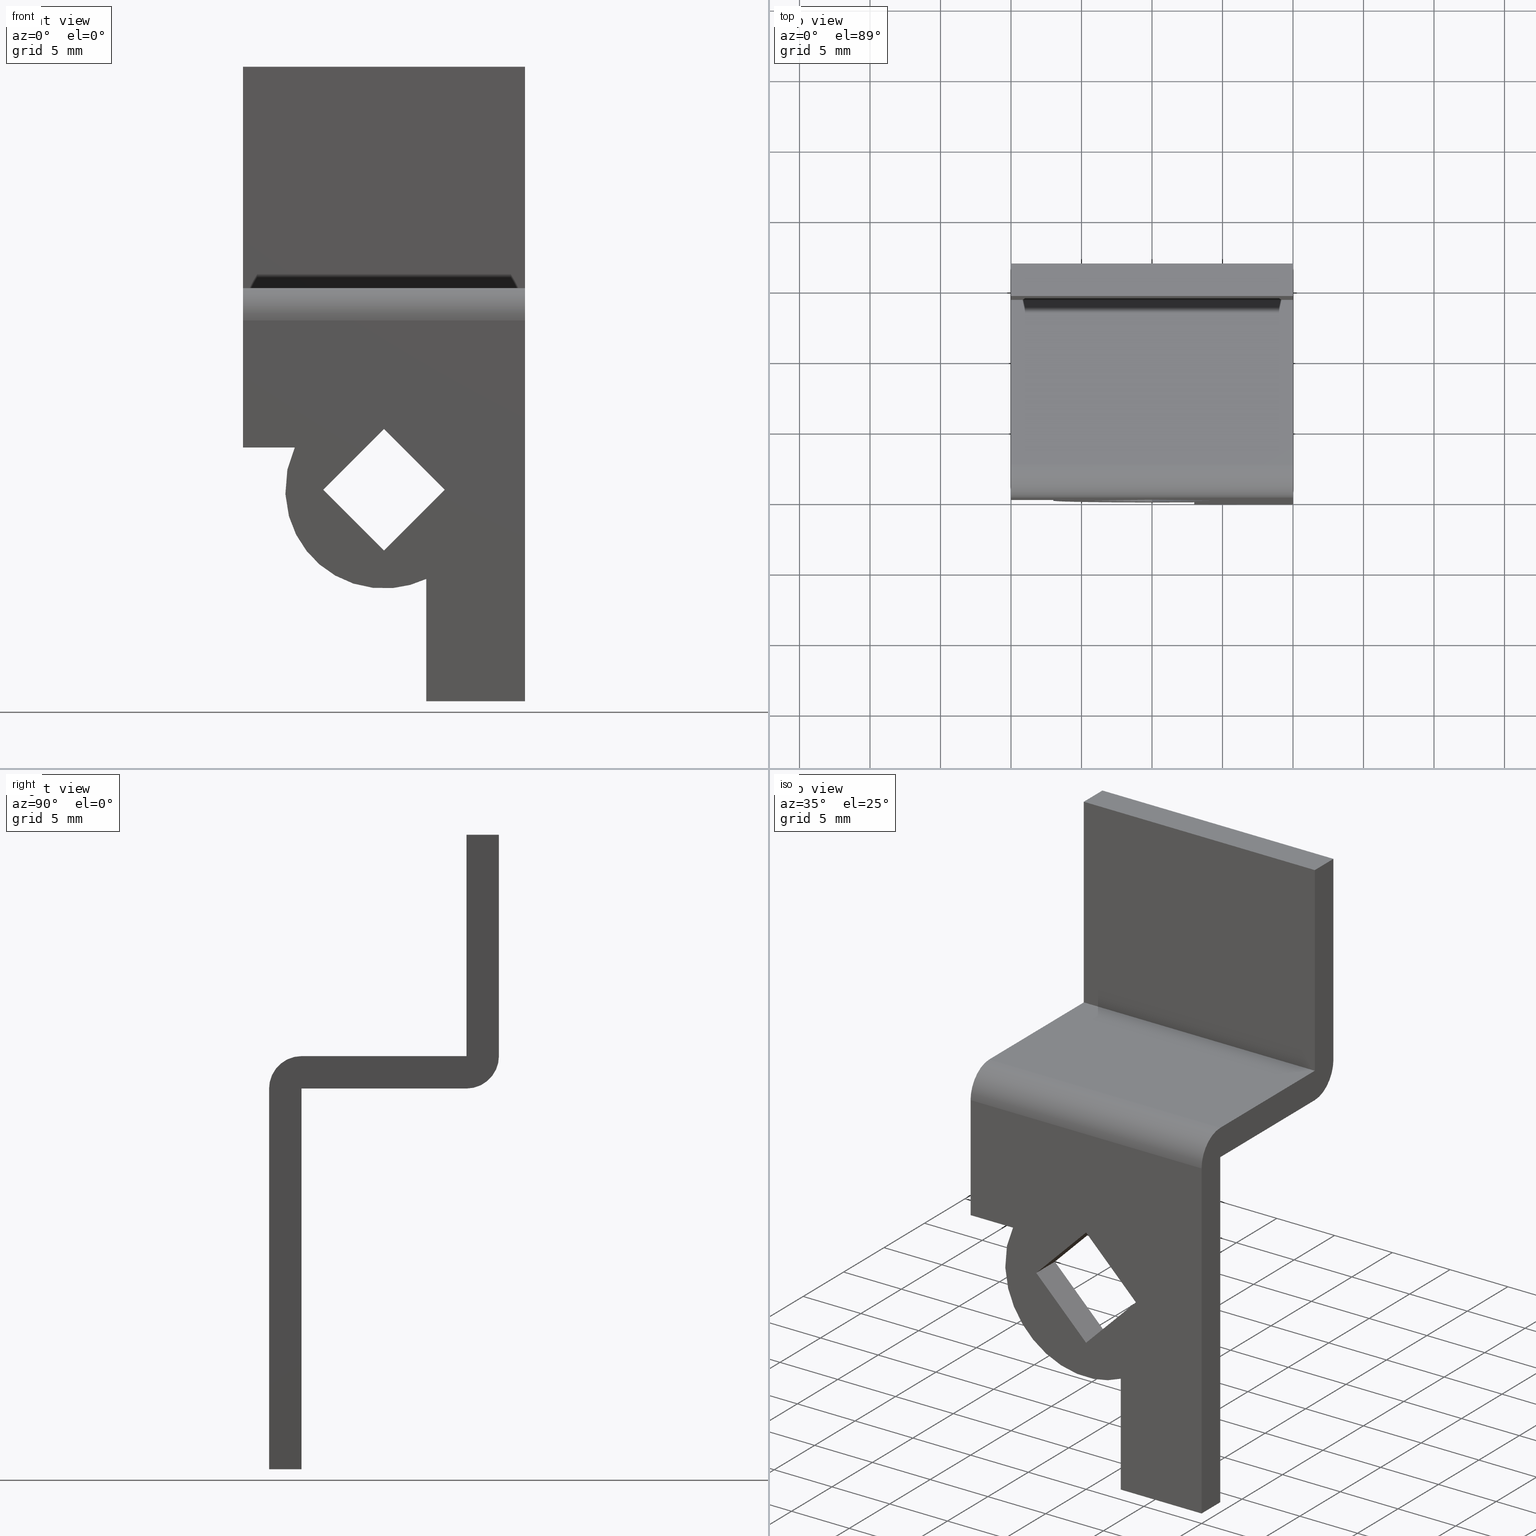
[diagram: canonical four-view strip — front | top / right | iso, engineering-drawing reading convention]
A machine part, canonical four-view strip (front | top / right | iso — engineering-drawing reading convention). The complete STEP part file that produces these views, byte-faithful:
ISO-10303-21;
HEADER;
/****************************************************************
 * Generated by software with PDE/Lib inside                    *
 * PDElib Version 4.4.1-0003, patched  Thursday August 19 11:58 *
 * International Technegroup Inc. (www.iti-oh.com)              *
 ****************************************************************/
FILE_DESCRIPTION((''),'2;1');
FILE_NAME('','2005-07-15T17:29:30',(''),(''),'','CADfix','');
FILE_SCHEMA(('AUTOMOTIVE_DESIGN'));
ENDSEC;
DATA;
#5=APPLICATION_CONTEXT('automotive design');
#6=APPLICATION_PROTOCOL_DEFINITION('Draft International Standard','automotive_design',1998,#5);
#7=PRODUCT_CONTEXT('None',#5,'mechanical');
#8=PRODUCT('cam','','None',(#7));
#9=PRODUCT_RELATED_PRODUCT_CATEGORY('part','description',(#8));
#10=PRODUCT_DEFINITION_FORMATION('None','None',#8);
#11=PRODUCT_DEFINITION_CONTEXT('part definition',#5,'design');
#12=PRODUCT_DEFINITION('None','None',#10,#11);
#18=(NAMED_UNIT(*)PLANE_ANGLE_UNIT()SI_UNIT($,.RADIAN.));
#19=DIMENSIONAL_EXPONENTS(0.0,0.0,0.0,0.0,0.0,0.0,0.0);
#20=PLANE_ANGLE_MEASURE_WITH_UNIT(PLANE_ANGLE_MEASURE(0.017453292500000),#18);
#24=(CONVERSION_BASED_UNIT('DEGREE',#20)NAMED_UNIT(#19)PLANE_ANGLE_UNIT());
#28=(NAMED_UNIT(*)SI_UNIT($,.STERADIAN.)SOLID_ANGLE_UNIT());
#32=(LENGTH_UNIT()NAMED_UNIT(*)SI_UNIT(.MILLI.,.METRE.));
#34=UNCERTAINTY_MEASURE_WITH_UNIT(LENGTH_MEASURE(0.001000000000000),#32,'DISTANCE_ACCURACY_VALUE','');
#36=(GEOMETRIC_REPRESENTATION_CONTEXT(3)GLOBAL_UNCERTAINTY_ASSIGNED_CONTEXT((#34))GLOBAL_UNIT_ASSIGNED_CONTEXT((#24,#28,#32))REPRESENTATION_CONTEXT('None','None'));
#37=AXIS2_PLACEMENT_3D('',#38,#39,#40);
#38=CARTESIAN_POINT('',(0.0,0.0,0.0));
#39=DIRECTION('',(0.0,0.0,1.0));
#40=DIRECTION('',(1.0,0.0,0.0));
#41=ADVANCED_BREP_SHAPE_REPRESENTATION('',(#37,#666),#36);
#42=PRODUCT_DEFINITION_SHAPE('','',#12);
#43=SHAPE_DEFINITION_REPRESENTATION(#42,#41);
#44=CARTESIAN_POINT('',(0.215450484949564,-0.114885145392148,-4.528799033399176));
#45=CARTESIAN_POINT('',(-4.528774639206167,-0.114885145392148,0.215460187656826));
#46=CARTESIAN_POINT('',(0.215450484949564,2.414888207083036,-4.528799033399176));
#47=CARTESIAN_POINT('',(-4.528774639206167,2.414888207083036,0.215460187656826));
#48=B_SPLINE_SURFACE_WITH_KNOTS('',1,1,((#44,#46),(#45,#47)),.UNSPECIFIED.,.F.,.F.,.U.,(2,2),(2,2),(0.0,6.709371623724935),(0.0,2.529773352475185),.UNSPECIFIED.);
#49=CARTESIAN_POINT('',(-4.313324000000001,2.300003000000000,0.000007999999909));
#50=VERTEX_POINT('',#49);
#51=CARTESIAN_POINT('',(-4.313324000000286,0.0,0.000007999999885));
#52=VERTEX_POINT('',#51);
#53=CARTESIAN_POINT('',(-4.313324000000001,2.300003000000000,0.000007999999909));
#54=CARTESIAN_POINT('',(-4.313324000000286,0.0,0.000007999999885));
#55=QUASI_UNIFORM_CURVE('',1,(#53,#54),.UNSPECIFIED.,.F.,.U.);
#56=EDGE_CURVE('',#50,#52,#55,.T.);
#57=ORIENTED_EDGE('',*,*,#56,.T.);
#58=CARTESIAN_POINT('',(0.0,0.0,-4.313347000000000));
#59=VERTEX_POINT('',#58);
#60=CARTESIAN_POINT('',(-4.313324000000286,0.0,0.000007999999885));
#61=CARTESIAN_POINT('',(0.0,0.0,-4.313347000000000));
#62=QUASI_UNIFORM_CURVE('',1,(#60,#61),.UNSPECIFIED.,.F.,.U.);
#63=EDGE_CURVE('',#52,#59,#62,.T.);
#64=ORIENTED_EDGE('',*,*,#63,.T.);
#65=CARTESIAN_POINT('',(-3.330669E-013,2.300003000000000,-4.313347000000000));
#66=VERTEX_POINT('',#65);
#67=CARTESIAN_POINT('',(-3.330669E-013,2.300003000000000,-4.313347000000000));
#68=CARTESIAN_POINT('',(0.0,0.0,-4.313347000000000));
#69=QUASI_UNIFORM_CURVE('',1,(#67,#68),.UNSPECIFIED.,.F.,.U.);
#70=EDGE_CURVE('',#66,#59,#69,.T.);
#71=ORIENTED_EDGE('',*,*,#70,.F.);
#72=CARTESIAN_POINT('',(-4.313324000000001,2.300003000000000,0.000007999999909));
#73=CARTESIAN_POINT('',(-3.330669E-013,2.300003000000000,-4.313347000000000));
#74=QUASI_UNIFORM_CURVE('',1,(#72,#73),.UNSPECIFIED.,.F.,.U.);
#75=EDGE_CURVE('',#50,#66,#74,.T.);
#76=ORIENTED_EDGE('',*,*,#75,.F.);
#77=EDGE_LOOP('',(#57,#64,#71,#76));
#78=FACE_OUTER_BOUND('',#77,.T.);
#79=ADVANCED_FACE('',(#78),#48,.F.);
#80=CARTESIAN_POINT('',(-4.528774525440114,-0.114885145392148,-0.215442875090170));
#81=CARTESIAN_POINT('',(0.215450641132314,-0.114885145392148,4.528789990782387));
#82=CARTESIAN_POINT('',(-4.528774525440114,2.414888207083036,-0.215442875090170));
#83=CARTESIAN_POINT('',(0.215450641132314,2.414888207083036,4.528789990782387));
#84=B_SPLINE_SURFACE_WITH_KNOTS('',1,1,((#80,#82),(#81,#83)),.UNSPECIFIED.,.F.,.F.,.U.,(2,2),(2,2),(0.0,6.709353017748025),(0.0,2.529773352475184),.UNSPECIFIED.);
#85=CARTESIAN_POINT('',(0.0,2.300003000000000,4.313338999999901));
#86=VERTEX_POINT('',#85);
#87=CARTESIAN_POINT('',(0.0,0.0,4.313338999999901));
#88=VERTEX_POINT('',#87);
#89=CARTESIAN_POINT('',(0.0,2.300003000000000,4.313338999999901));
#90=CARTESIAN_POINT('',(0.0,0.0,4.313338999999901));
#91=QUASI_UNIFORM_CURVE('',1,(#89,#90),.UNSPECIFIED.,.F.,.U.);
#92=EDGE_CURVE('',#86,#88,#91,.T.);
#93=ORIENTED_EDGE('',*,*,#92,.T.);
#94=CARTESIAN_POINT('',(0.0,0.0,4.313338999999901));
#95=CARTESIAN_POINT('',(-4.313324000000286,0.0,0.000007999999885));
#96=QUASI_UNIFORM_CURVE('',1,(#94,#95),.UNSPECIFIED.,.F.,.U.);
#97=EDGE_CURVE('',#88,#52,#96,.T.);
#98=ORIENTED_EDGE('',*,*,#97,.T.);
#99=ORIENTED_EDGE('',*,*,#56,.F.);
#100=CARTESIAN_POINT('',(0.0,2.300003000000000,4.313338999999901));
#101=CARTESIAN_POINT('',(-4.313324000000001,2.300003000000000,0.000007999999909));
#102=QUASI_UNIFORM_CURVE('',1,(#100,#101),.UNSPECIFIED.,.F.,.U.);
#103=EDGE_CURVE('',#86,#50,#102,.T.);
#104=ORIENTED_EDGE('',*,*,#103,.F.);
#105=EDGE_LOOP('',(#93,#98,#99,#104));
#106=FACE_OUTER_BOUND('',#105,.T.);
#107=ADVANCED_FACE('',(#106),#84,.F.);
#108=CARTESIAN_POINT('',(-0.215452145411924,-0.114885145392148,4.528790795761635));
#109=CARTESIAN_POINT('',(4.528806145411811,-0.114885145392148,-0.215459795761731));
#110=CARTESIAN_POINT('',(-0.215452145411924,2.414888207083036,4.528790795761635));
#111=CARTESIAN_POINT('',(4.528806145411811,2.414888207083036,-0.215459795761731));
#112=B_SPLINE_SURFACE_WITH_KNOTS('',1,1,((#108,#110),(#109,#111)),.UNSPECIFIED.,.F.,.F.,.U.,(2,2),(2,2),(0.0,6.709388974058633),(0.0,2.529773352475185),.UNSPECIFIED.);
#113=CARTESIAN_POINT('',(4.313353999999890,2.300003000000000,-0.000007999999994));
#114=VERTEX_POINT('',#113);
#115=CARTESIAN_POINT('',(4.313353999999890,0.0,-0.000007999999994));
#116=VERTEX_POINT('',#115);
#117=CARTESIAN_POINT('',(4.313353999999890,2.300003000000000,-0.000007999999994));
#118=CARTESIAN_POINT('',(4.313353999999890,0.0,-0.000007999999994));
#119=QUASI_UNIFORM_CURVE('',1,(#117,#118),.UNSPECIFIED.,.F.,.U.);
#120=EDGE_CURVE('',#114,#116,#119,.T.);
#121=ORIENTED_EDGE('',*,*,#120,.T.);
#122=CARTESIAN_POINT('',(4.313353999999890,0.0,-0.000007999999994));
#123=CARTESIAN_POINT('',(0.0,0.0,4.313338999999901));
#124=QUASI_UNIFORM_CURVE('',1,(#122,#123),.UNSPECIFIED.,.F.,.U.);
#125=EDGE_CURVE('',#116,#88,#124,.T.);
#126=ORIENTED_EDGE('',*,*,#125,.T.);
#127=ORIENTED_EDGE('',*,*,#92,.F.);
#128=CARTESIAN_POINT('',(4.313353999999890,2.300003000000000,-0.000007999999994));
#129=CARTESIAN_POINT('',(0.0,2.300003000000000,4.313338999999901));
#130=QUASI_UNIFORM_CURVE('',1,(#128,#129),.UNSPECIFIED.,.F.,.U.);
#131=EDGE_CURVE('',#114,#86,#130,.T.);
#132=ORIENTED_EDGE('',*,*,#131,.F.);
#133=EDGE_LOOP('',(#121,#126,#127,#132));
#134=FACE_OUTER_BOUND('',#133,.T.);
#135=ADVANCED_FACE('',(#134),#112,.F.);
#136=CARTESIAN_POINT('',(4.528806049020131,-0.114885145392148,0.215443299770187));
#137=CARTESIAN_POINT('',(-0.215451817634064,-0.114885145392148,-4.528798068384816));
#138=CARTESIAN_POINT('',(4.528806049020131,2.414888207083036,0.215443299770187));
#139=CARTESIAN_POINT('',(-0.215451817634064,2.414888207083036,-4.528798068384816));
#140=B_SPLINE_SURFACE_WITH_KNOTS('',1,1,((#136,#138),(#137,#139)),.UNSPECIFIED.,.F.,.F.,.U.,(2,2),(2,2),(0.0,6.709382152227094),(0.0,2.529773352475185),.UNSPECIFIED.);
#141=ORIENTED_EDGE('',*,*,#70,.T.);
#142=CARTESIAN_POINT('',(0.0,0.0,-4.313347000000000));
#143=CARTESIAN_POINT('',(4.313353999999890,0.0,-0.000007999999994));
#144=QUASI_UNIFORM_CURVE('',1,(#142,#143),.UNSPECIFIED.,.F.,.U.);
#145=EDGE_CURVE('',#59,#116,#144,.T.);
#146=ORIENTED_EDGE('',*,*,#145,.T.);
#147=ORIENTED_EDGE('',*,*,#120,.F.);
#148=CARTESIAN_POINT('',(-3.330669E-013,2.300003000000000,-4.313347000000000));
#149=CARTESIAN_POINT('',(4.313353999999890,2.300003000000000,-0.000007999999994));
#150=QUASI_UNIFORM_CURVE('',1,(#148,#149),.UNSPECIFIED.,.F.,.U.);
#151=EDGE_CURVE('',#66,#114,#150,.T.);
#152=ORIENTED_EDGE('',*,*,#151,.F.);
#153=EDGE_LOOP('',(#141,#146,#147,#152));
#154=FACE_OUTER_BOUND('',#153,.T.);
#155=ADVANCED_FACE('',(#154),#140,.F.);
#156=CARTESIAN_POINT('',(-10.183588470626400,-0.114885145392148,3.0));
#157=CARTESIAN_POINT('',(-6.140966430790696,-0.114885145392148,3.0));
#158=CARTESIAN_POINT('',(-10.183588470626400,2.414888207083036,3.0));
#159=CARTESIAN_POINT('',(-6.140966430790697,2.414888207083036,3.0));
#160=B_SPLINE_SURFACE_WITH_KNOTS('',1,1,((#156,#158),(#157,#159)),.UNSPECIFIED.,.F.,.F.,.U.,(2,2),(2,2),(0.0,4.042622039835701),(0.0,2.529773352475184),.UNSPECIFIED.);
#161=CARTESIAN_POINT('',(-6.324555000000090,2.300003000000000,3.0));
#162=VERTEX_POINT('',#161);
#163=CARTESIAN_POINT('',(-6.324555000000090,0.0,3.0));
#164=VERTEX_POINT('',#163);
#165=CARTESIAN_POINT('',(-6.324555000000090,2.300003000000000,3.0));
#166=CARTESIAN_POINT('',(-6.324555000000090,0.0,3.0));
#167=QUASI_UNIFORM_CURVE('',1,(#165,#166),.UNSPECIFIED.,.F.,.U.);
#168=EDGE_CURVE('',#162,#164,#167,.T.);
#169=ORIENTED_EDGE('',*,*,#168,.T.);
#170=CARTESIAN_POINT('',(-10.000000000000121,0.0,3.0));
#171=VERTEX_POINT('',#170);
#172=CARTESIAN_POINT('',(-6.324555000000090,0.0,3.0));
#173=CARTESIAN_POINT('',(-10.000000000000121,0.0,3.0));
#174=QUASI_UNIFORM_CURVE('',1,(#172,#173),.UNSPECIFIED.,.F.,.U.);
#175=EDGE_CURVE('',#164,#171,#174,.T.);
#176=ORIENTED_EDGE('',*,*,#175,.T.);
#177=CARTESIAN_POINT('',(-10.0,2.300003000000000,3.0));
#178=VERTEX_POINT('',#177);
#179=CARTESIAN_POINT('',(-10.0,2.300003000000000,3.0));
#180=CARTESIAN_POINT('',(-10.000000000000121,0.0,3.0));
#181=QUASI_UNIFORM_CURVE('',1,(#179,#180),.UNSPECIFIED.,.F.,.U.);
#182=EDGE_CURVE('',#178,#171,#181,.T.);
#183=ORIENTED_EDGE('',*,*,#182,.F.);
#184=CARTESIAN_POINT('',(-6.324555000000090,2.300003000000000,3.0));
#185=CARTESIAN_POINT('',(-10.0,2.300003000000000,3.0));
#186=QUASI_UNIFORM_CURVE('',1,(#184,#185),.UNSPECIFIED.,.F.,.U.);
#187=EDGE_CURVE('',#162,#178,#186,.T.);
#188=ORIENTED_EDGE('',*,*,#187,.F.);
#189=EDGE_LOOP('',(#169,#176,#183,#188));
#190=FACE_OUTER_BOUND('',#189,.T.);
#191=ADVANCED_FACE('',(#190),#160,.F.);
#192=CARTESIAN_POINT('',(3.0,-0.114885145392148,-5.891223970153591));
#193=CARTESIAN_POINT('',(3.0,-0.114885145392148,-15.433338340104349));
#194=CARTESIAN_POINT('',(3.0,2.414888207083036,-5.891223970153592));
#195=CARTESIAN_POINT('',(3.0,2.414888207083036,-15.433338340104349));
#196=B_SPLINE_SURFACE_WITH_KNOTS('',1,1,((#192,#194),(#193,#195)),.UNSPECIFIED.,.F.,.F.,.U.,(2,2),(2,2),(0.0,9.542114369950756),(0.0,2.529773352475184),.UNSPECIFIED.);
#197=CARTESIAN_POINT('',(3.0,2.300003000000000,-15.0));
#198=VERTEX_POINT('',#197);
#199=CARTESIAN_POINT('',(3.0,0.0,-15.0));
#200=VERTEX_POINT('',#199);
#201=CARTESIAN_POINT('',(3.0,2.300003000000000,-15.0));
#202=CARTESIAN_POINT('',(3.0,0.0,-15.0));
#203=QUASI_UNIFORM_CURVE('',1,(#201,#202),.UNSPECIFIED.,.F.,.U.);
#204=EDGE_CURVE('',#198,#200,#203,.T.);
#205=ORIENTED_EDGE('',*,*,#204,.T.);
#206=CARTESIAN_POINT('',(3.0,0.0,-6.324562000000100));
#207=VERTEX_POINT('',#206);
#208=CARTESIAN_POINT('',(3.0,0.0,-15.0));
#209=CARTESIAN_POINT('',(3.0,0.0,-6.324562000000100));
#210=QUASI_UNIFORM_CURVE('',1,(#208,#209),.UNSPECIFIED.,.F.,.U.);
#211=EDGE_CURVE('',#200,#207,#210,.T.);
#212=ORIENTED_EDGE('',*,*,#211,.T.);
#213=CARTESIAN_POINT('',(3.0,2.300003000000000,-6.324562000000100));
#214=VERTEX_POINT('',#213);
#215=CARTESIAN_POINT('',(3.0,2.300003000000000,-6.324562000000100));
#216=CARTESIAN_POINT('',(3.0,0.0,-6.324562000000100));
#217=QUASI_UNIFORM_CURVE('',1,(#215,#216),.UNSPECIFIED.,.F.,.U.);
#218=EDGE_CURVE('',#214,#207,#217,.T.);
#219=ORIENTED_EDGE('',*,*,#218,.F.);
#220=CARTESIAN_POINT('',(3.0,2.300003000000000,-15.0));
#221=CARTESIAN_POINT('',(3.0,2.300003000000000,-6.324562000000100));
#222=QUASI_UNIFORM_CURVE('',1,(#220,#221),.UNSPECIFIED.,.F.,.U.);
#223=EDGE_CURVE('',#198,#214,#222,.T.);
#224=ORIENTED_EDGE('',*,*,#223,.F.);
#225=EDGE_LOOP('',(#205,#212,#219,#224));
#226=FACE_OUTER_BOUND('',#225,.T.);
#227=ADVANCED_FACE('',(#226),#196,.F.);
#228=CARTESIAN_POINT('',(3.191322680030121,2.357503075000001,-6.230205418116269));
#229=CARTESIAN_POINT('',(3.191322680030121,-0.058937576875000,-6.230205418116269));
#230=CARTESIAN_POINT('',(-1.460992365745341,2.357503075000001,-8.613279092871229));
#231=CARTESIAN_POINT('',(-1.460992365745341,-0.058937576875000,-8.613279092871229));
#232=CARTESIAN_POINT('',(-5.067259296142423,2.357503075000001,-4.829377105347867));
#233=CARTESIAN_POINT('',(-5.067259296142423,-0.058937576875000,-4.829377105347867));
#234=CARTESIAN_POINT('',(-8.673526226539504,2.357503075000001,-1.045475117824505));
#235=CARTESIAN_POINT('',(-8.673526226539504,-0.058937576875000,-1.045475117824505));
#236=CARTESIAN_POINT('',(-6.069681471426208,2.357503075000001,3.486971011555061));
#237=CARTESIAN_POINT('',(-6.069681471426208,-0.058937576875000,3.486971011555061));
#245=(BOUNDED_SURFACE()B_SPLINE_SURFACE(1,2,((#228,#230,#232,#234,#236),(#229,#231,#233,#235,#237)),.UNSPECIFIED.,.F.,.F.,.U.)B_SPLINE_SURFACE_WITH_KNOTS((2,2),(3,2,3),(0.0,2.416440651875001),(0.0,9.300792979835226,18.601585959670452),.UNSPECIFIED.)GEOMETRIC_REPRESENTATION_ITEM()RATIONAL_B_SPLINE_SURFACE(((1.0,0.801253812691061,1.0,0.801253812691061,1.0),(1.0,0.801253812691061,1.0,0.801253812691061,1.0)))REPRESENTATION_ITEM('')SURFACE());
#246=CARTESIAN_POINT('',(-6.324555000000090,2.300003000000000,3.0));
#247=CARTESIAN_POINT('',(-8.439917307903180,2.300003000000000,-1.459576373039803));
#248=CARTESIAN_POINT('',(-4.949747104974507,2.300003000000000,-4.949749196060423));
#249=CARTESIAN_POINT('',(-1.459576902045833,2.300003000000000,-8.439922019081042));
#250=CARTESIAN_POINT('',(3.0,2.300003000000000,-6.324562000000100));
#258=(BOUNDED_CURVE()B_SPLINE_CURVE(2,(#246,#247,#248,#249,#250),.UNSPECIFIED.,.F.,.U.)B_SPLINE_CURVE_WITH_KNOTS((3,2,3),(0.0,0.500000000000000,1.0),.UNSPECIFIED.)CURVE()GEOMETRIC_REPRESENTATION_ITEM()RATIONAL_B_SPLINE_CURVE((1.0,0.817260969642256,1.0,0.817260969642256,1.0))REPRESENTATION_ITEM(''));
#259=EDGE_CURVE('',#162,#214,#258,.T.);
#260=ORIENTED_EDGE('',*,*,#259,.T.);
#261=ORIENTED_EDGE('',*,*,#218,.T.);
#262=CARTESIAN_POINT('',(-6.324555000000090,0.0,3.0));
#263=CARTESIAN_POINT('',(-8.439917307903180,0.0,-1.459576373039803));
#264=CARTESIAN_POINT('',(-4.949747104974504,0.0,-4.949749196060422));
#265=CARTESIAN_POINT('',(-1.459576902045831,0.0,-8.439922019081038));
#266=CARTESIAN_POINT('',(3.0,0.0,-6.324562000000100));
#274=(BOUNDED_CURVE()B_SPLINE_CURVE(2,(#262,#263,#264,#265,#266),.UNSPECIFIED.,.F.,.U.)B_SPLINE_CURVE_WITH_KNOTS((3,2,3),(0.0,0.500000000000000,1.0),.UNSPECIFIED.)CURVE()GEOMETRIC_REPRESENTATION_ITEM()RATIONAL_B_SPLINE_CURVE((1.0,0.817260969642256,1.0,0.817260969642256,1.0))REPRESENTATION_ITEM(''));
#275=EDGE_CURVE('',#164,#207,#274,.T.);
#276=ORIENTED_EDGE('',*,*,#275,.F.);
#277=ORIENTED_EDGE('',*,*,#168,.F.);
#278=EDGE_LOOP('',(#260,#261,#276,#277));
#279=FACE_OUTER_BOUND('',#278,.T.);
#280=ADVANCED_FACE('',(#279),#245,.T.);
#281=CARTESIAN_POINT('',(-10.0,-0.814185118257431,31.348649947668761));
#282=CARTESIAN_POINT('',(-10.0,17.114188555457581,31.348649947668761));
#283=CARTESIAN_POINT('',(-10.0,-0.814185118257431,1.651349328134806));
#284=CARTESIAN_POINT('',(-10.0,17.114188555457581,1.651349328134806));
#285=B_SPLINE_SURFACE_WITH_KNOTS('',1,1,((#281,#283),(#282,#284)),.UNSPECIFIED.,.F.,.F.,.U.,(2,2),(2,2),(0.0,17.928373673715011),(0.0,29.697300619533959),.UNSPECIFIED.);
#286=CARTESIAN_POINT('',(-10.000000000000121,2.300003000000000,12.0));
#287=VERTEX_POINT('',#286);
#288=CARTESIAN_POINT('',(-10.0,2.300003000000000,3.0));
#289=CARTESIAN_POINT('',(-10.000000000000121,2.300003000000000,12.0));
#290=QUASI_UNIFORM_CURVE('',1,(#288,#289),.UNSPECIFIED.,.F.,.U.);
#291=EDGE_CURVE('',#178,#287,#290,.T.);
#292=ORIENTED_EDGE('',*,*,#291,.F.);
#293=ORIENTED_EDGE('',*,*,#182,.T.);
#294=CARTESIAN_POINT('',(-10.000000000000121,0.000003000000015,11.999999799287140));
#295=VERTEX_POINT('',#294);
#296=CARTESIAN_POINT('',(-10.000000000000121,0.000003000000015,11.999999799287140));
#297=CARTESIAN_POINT('',(-10.000000000000121,0.0,3.0));
#298=QUASI_UNIFORM_CURVE('',1,(#296,#297),.UNSPECIFIED.,.F.,.U.);
#299=EDGE_CURVE('',#295,#171,#298,.T.);
#300=ORIENTED_EDGE('',*,*,#299,.F.);
#301=CARTESIAN_POINT('',(-10.000000000000121,2.300003000000000,14.300002999999901));
#302=VERTEX_POINT('',#301);
#303=CARTESIAN_POINT('',(-10.000000000000121,2.300003000000000,14.300002999999901));
#304=CARTESIAN_POINT('',(-10.000000000000121,1.347311747754447,14.300002378679592));
#305=CARTESIAN_POINT('',(-10.000000000000121,0.673657332308234,13.626347025766290));
#306=CARTESIAN_POINT('',(-10.000000000000121,0.000002916862020,12.952691672853000));
#307=CARTESIAN_POINT('',(-10.000000000000121,0.000003000000015,11.999999799287140));
#315=(BOUNDED_CURVE()B_SPLINE_CURVE(2,(#303,#304,#305,#306,#307),.UNSPECIFIED.,.F.,.U.)B_SPLINE_CURVE_WITH_KNOTS((3,2,3),(0.0,0.500000000000000,1.0),.UNSPECIFIED.)CURVE()GEOMETRIC_REPRESENTATION_ITEM()RATIONAL_B_SPLINE_CURVE((1.0,0.923879524162429,1.0,0.923879524162429,1.0))REPRESENTATION_ITEM(''));
#316=EDGE_CURVE('',#302,#295,#315,.T.);
#317=ORIENTED_EDGE('',*,*,#316,.F.);
#318=CARTESIAN_POINT('',(-10.000000000000121,14.0,14.300002999999901));
#319=VERTEX_POINT('',#318);
#320=CARTESIAN_POINT('',(-10.000000000000121,14.0,14.300002999999901));
#321=CARTESIAN_POINT('',(-10.000000000000121,2.300003000000000,14.300002999999901));
#322=QUASI_UNIFORM_CURVE('',1,(#320,#321),.UNSPECIFIED.,.F.,.U.);
#323=EDGE_CURVE('',#319,#302,#322,.T.);
#324=ORIENTED_EDGE('',*,*,#323,.F.);
#325=CARTESIAN_POINT('',(-10.000000000000121,14.0,30.0));
#326=VERTEX_POINT('',#325);
#327=CARTESIAN_POINT('',(-10.000000000000121,14.0,30.0));
#328=CARTESIAN_POINT('',(-10.000000000000121,14.0,14.300002999999901));
#329=QUASI_UNIFORM_CURVE('',1,(#327,#328),.UNSPECIFIED.,.F.,.U.);
#330=EDGE_CURVE('',#326,#319,#329,.T.);
#331=ORIENTED_EDGE('',*,*,#330,.F.);
#332=CARTESIAN_POINT('',(-10.000000000000121,16.300003000000000,30.0));
#333=VERTEX_POINT('',#332);
#334=CARTESIAN_POINT('',(-10.000000000000121,16.300003000000000,30.0));
#335=CARTESIAN_POINT('',(-10.000000000000121,14.0,30.0));
#336=QUASI_UNIFORM_CURVE('',1,(#334,#335),.UNSPECIFIED.,.F.,.U.);
#337=EDGE_CURVE('',#333,#326,#336,.T.);
#338=ORIENTED_EDGE('',*,*,#337,.F.);
#339=CARTESIAN_POINT('',(-10.000000000000121,16.300000000000001,14.300003200712760));
#340=VERTEX_POINT('',#339);
#341=CARTESIAN_POINT('',(-10.000000000000121,16.300000000000001,14.300003200712760));
#342=CARTESIAN_POINT('',(-10.000000000000121,16.300003000000000,30.0));
#343=QUASI_UNIFORM_CURVE('',1,(#341,#342),.UNSPECIFIED.,.F.,.U.);
#344=EDGE_CURVE('',#340,#333,#343,.T.);
#345=ORIENTED_EDGE('',*,*,#344,.F.);
#346=CARTESIAN_POINT('',(-10.000000000000121,14.0,12.0));
#347=VERTEX_POINT('',#346);
#348=CARTESIAN_POINT('',(-10.000000000000121,14.0,12.0));
#349=CARTESIAN_POINT('',(-10.000000000000121,14.952691252245561,12.000000621320304));
#350=CARTESIAN_POINT('',(-10.000000000000121,15.626345667691769,12.673655974233601));
#351=CARTESIAN_POINT('',(-10.000000000000121,16.300000083137995,13.347311327146897));
#352=CARTESIAN_POINT('',(-10.000000000000121,16.300000000000001,14.300003200712760));
#360=(BOUNDED_CURVE()B_SPLINE_CURVE(2,(#348,#349,#350,#351,#352),.UNSPECIFIED.,.F.,.U.)B_SPLINE_CURVE_WITH_KNOTS((3,2,3),(0.0,0.500000000000000,1.0),.UNSPECIFIED.)CURVE()GEOMETRIC_REPRESENTATION_ITEM()RATIONAL_B_SPLINE_CURVE((1.0,0.923879524162429,1.0,0.923879524162429,1.0))REPRESENTATION_ITEM(''));
#361=EDGE_CURVE('',#347,#340,#360,.T.);
#362=ORIENTED_EDGE('',*,*,#361,.F.);
#363=CARTESIAN_POINT('',(-10.000000000000121,2.300003000000000,12.0));
#364=CARTESIAN_POINT('',(-10.000000000000121,14.0,12.0));
#365=QUASI_UNIFORM_CURVE('',1,(#363,#364),.UNSPECIFIED.,.F.,.U.);
#366=EDGE_CURVE('',#287,#347,#365,.T.);
#367=ORIENTED_EDGE('',*,*,#366,.F.);
#368=EDGE_LOOP('',(#292,#293,#300,#317,#324,#331,#338,#345,#362,#367));
#369=FACE_OUTER_BOUND('',#368,.T.);
#370=ADVANCED_FACE('',(#369),#285,.T.);
#371=CARTESIAN_POINT('',(10.0,-0.814185118257431,32.247749912781273));
#372=CARTESIAN_POINT('',(10.0,17.114188555457581,32.247749912781273));
#373=CARTESIAN_POINT('',(10.0,-0.814185118257431,-17.247751119775319));
#374=CARTESIAN_POINT('',(10.0,17.114188555457581,-17.247751119775319));
#375=B_SPLINE_SURFACE_WITH_KNOTS('',1,1,((#371,#373),(#372,#374)),.UNSPECIFIED.,.F.,.F.,.U.,(2,2),(2,2),(0.0,17.928373673715011),(0.0,49.495501032556589),.UNSPECIFIED.);
#376=CARTESIAN_POINT('',(10.0,16.300003000000000,30.0));
#377=VERTEX_POINT('',#376);
#378=CARTESIAN_POINT('',(10.0,14.0,30.0));
#379=VERTEX_POINT('',#378);
#380=CARTESIAN_POINT('',(10.0,16.300003000000000,30.0));
#381=CARTESIAN_POINT('',(10.0,14.0,30.0));
#382=QUASI_UNIFORM_CURVE('',1,(#380,#381),.UNSPECIFIED.,.F.,.U.);
#383=EDGE_CURVE('',#377,#379,#382,.T.);
#384=ORIENTED_EDGE('',*,*,#383,.T.);
#385=CARTESIAN_POINT('',(10.0,14.0,14.300002999999901));
#386=VERTEX_POINT('',#385);
#387=CARTESIAN_POINT('',(10.0,14.0,30.0));
#388=CARTESIAN_POINT('',(10.0,14.0,14.300002999999901));
#389=QUASI_UNIFORM_CURVE('',1,(#387,#388),.UNSPECIFIED.,.F.,.U.);
#390=EDGE_CURVE('',#379,#386,#389,.T.);
#391=ORIENTED_EDGE('',*,*,#390,.T.);
#392=CARTESIAN_POINT('',(10.0,2.300003000000000,14.300002999999901));
#393=VERTEX_POINT('',#392);
#394=CARTESIAN_POINT('',(10.0,14.0,14.300002999999901));
#395=CARTESIAN_POINT('',(10.0,2.300003000000000,14.300002999999901));
#396=QUASI_UNIFORM_CURVE('',1,(#394,#395),.UNSPECIFIED.,.F.,.U.);
#397=EDGE_CURVE('',#386,#393,#396,.T.);
#398=ORIENTED_EDGE('',*,*,#397,.T.);
#399=CARTESIAN_POINT('',(10.0,0.000003000000015,11.999999799287140));
#400=VERTEX_POINT('',#399);
#401=CARTESIAN_POINT('',(10.0,2.300003000000000,14.300002999999901));
#402=CARTESIAN_POINT('',(10.0,1.347311747754447,14.300002378679592));
#403=CARTESIAN_POINT('',(10.0,0.673657332308234,13.626347025766290));
#404=CARTESIAN_POINT('',(10.0,0.000002916862020,12.952691672853000));
#405=CARTESIAN_POINT('',(10.0,0.000003000000015,11.999999799287140));
#413=(BOUNDED_CURVE()B_SPLINE_CURVE(2,(#401,#402,#403,#404,#405),.UNSPECIFIED.,.F.,.U.)B_SPLINE_CURVE_WITH_KNOTS((3,2,3),(0.0,0.500000000000000,1.0),.UNSPECIFIED.)CURVE()GEOMETRIC_REPRESENTATION_ITEM()RATIONAL_B_SPLINE_CURVE((1.0,0.923879524162429,1.0,0.923879524162429,1.0))REPRESENTATION_ITEM(''));
#414=EDGE_CURVE('',#393,#400,#413,.T.);
#415=ORIENTED_EDGE('',*,*,#414,.T.);
#416=CARTESIAN_POINT('',(10.0,0.0,-15.0));
#417=VERTEX_POINT('',#416);
#418=CARTESIAN_POINT('',(10.0,0.000003000000015,11.999999799287140));
#419=CARTESIAN_POINT('',(10.0,0.0,-15.0));
#420=QUASI_UNIFORM_CURVE('',1,(#418,#419),.UNSPECIFIED.,.F.,.U.);
#421=EDGE_CURVE('',#400,#417,#420,.T.);
#422=ORIENTED_EDGE('',*,*,#421,.T.);
#423=CARTESIAN_POINT('',(10.0,2.300003000000000,-15.0));
#424=VERTEX_POINT('',#423);
#425=CARTESIAN_POINT('',(10.0,0.0,-15.0));
#426=CARTESIAN_POINT('',(10.0,2.300003000000000,-15.0));
#427=QUASI_UNIFORM_CURVE('',1,(#425,#426),.UNSPECIFIED.,.F.,.U.);
#428=EDGE_CURVE('',#417,#424,#427,.T.);
#429=ORIENTED_EDGE('',*,*,#428,.T.);
#430=CARTESIAN_POINT('',(10.0,2.300003000000000,12.0));
#431=VERTEX_POINT('',#430);
#432=CARTESIAN_POINT('',(10.0,2.300003000000000,-15.0));
#433=CARTESIAN_POINT('',(10.0,2.300003000000000,12.0));
#434=QUASI_UNIFORM_CURVE('',1,(#432,#433),.UNSPECIFIED.,.F.,.U.);
#435=EDGE_CURVE('',#424,#431,#434,.T.);
#436=ORIENTED_EDGE('',*,*,#435,.T.);
#437=CARTESIAN_POINT('',(10.0,14.0,12.0));
#438=VERTEX_POINT('',#437);
#439=CARTESIAN_POINT('',(10.0,2.300003000000000,12.0));
#440=CARTESIAN_POINT('',(10.0,14.0,12.0));
#441=QUASI_UNIFORM_CURVE('',1,(#439,#440),.UNSPECIFIED.,.F.,.U.);
#442=EDGE_CURVE('',#431,#438,#441,.T.);
#443=ORIENTED_EDGE('',*,*,#442,.T.);
#444=CARTESIAN_POINT('',(10.0,16.300000000000001,14.300003200712760));
#445=VERTEX_POINT('',#444);
#446=CARTESIAN_POINT('',(10.0,14.0,12.0));
#447=CARTESIAN_POINT('',(10.0,14.952691252245561,12.000000621320304));
#448=CARTESIAN_POINT('',(10.0,15.626345667691769,12.673655974233601));
#449=CARTESIAN_POINT('',(10.0,16.300000083137995,13.347311327146897));
#450=CARTESIAN_POINT('',(10.0,16.300000000000001,14.300003200712760));
#458=(BOUNDED_CURVE()B_SPLINE_CURVE(2,(#446,#447,#448,#449,#450),.UNSPECIFIED.,.F.,.U.)B_SPLINE_CURVE_WITH_KNOTS((3,2,3),(0.0,0.500000000000000,1.0),.UNSPECIFIED.)CURVE()GEOMETRIC_REPRESENTATION_ITEM()RATIONAL_B_SPLINE_CURVE((1.0,0.923879524162429,1.0,0.923879524162429,1.0))REPRESENTATION_ITEM(''));
#459=EDGE_CURVE('',#438,#445,#458,.T.);
#460=ORIENTED_EDGE('',*,*,#459,.T.);
#461=CARTESIAN_POINT('',(10.0,16.300000000000001,14.300003200712760));
#462=CARTESIAN_POINT('',(10.0,16.300003000000000,30.0));
#463=QUASI_UNIFORM_CURVE('',1,(#461,#462),.UNSPECIFIED.,.F.,.U.);
#464=EDGE_CURVE('',#445,#377,#463,.T.);
#465=ORIENTED_EDGE('',*,*,#464,.T.);
#466=EDGE_LOOP('',(#384,#391,#398,#415,#422,#429,#436,#443,#460,#465));
#467=FACE_OUTER_BOUND('',#466,.T.);
#468=ADVANCED_FACE('',(#467),#375,.F.);
#469=CARTESIAN_POINT('',(-10.998999961236249,16.300003000000000,30.784214809694760));
#470=CARTESIAN_POINT('',(-10.998999961236249,16.300003000000000,13.515787969911271));
#471=CARTESIAN_POINT('',(10.999000497677930,16.300003000000000,30.784214809694760));
#472=CARTESIAN_POINT('',(10.999000497677930,16.300003000000000,13.515787969911271));
#473=B_SPLINE_SURFACE_WITH_KNOTS('',1,1,((#469,#471),(#470,#472)),.UNSPECIFIED.,.F.,.F.,.U.,(2,2),(2,2),(0.0,17.268426839783491),(0.0,21.998000458914170),.UNSPECIFIED.);
#474=ORIENTED_EDGE('',*,*,#344,.T.);
#475=CARTESIAN_POINT('',(10.0,16.300003000000000,30.0));
#476=CARTESIAN_POINT('',(-10.000000000000121,16.300003000000000,30.0));
#477=QUASI_UNIFORM_CURVE('',1,(#475,#476),.UNSPECIFIED.,.F.,.U.);
#478=EDGE_CURVE('',#377,#333,#477,.T.);
#479=ORIENTED_EDGE('',*,*,#478,.F.);
#480=ORIENTED_EDGE('',*,*,#464,.F.);
#481=CARTESIAN_POINT('',(10.0,16.300000000000001,14.300003200712760));
#482=CARTESIAN_POINT('',(-10.000000000000121,16.300000000000001,14.300003200712760));
#483=QUASI_UNIFORM_CURVE('',1,(#481,#482),.UNSPECIFIED.,.F.,.U.);
#484=EDGE_CURVE('',#445,#340,#483,.T.);
#485=ORIENTED_EDGE('',*,*,#484,.T.);
#486=EDGE_LOOP('',(#474,#479,#480,#485));
#487=FACE_OUTER_BOUND('',#486,.T.);
#488=ADVANCED_FACE('',(#487),#473,.F.);
#489=CARTESIAN_POINT('',(10.500000000000011,13.939793018891891,12.000791152556120));
#490=CARTESIAN_POINT('',(-10.512500000000120,13.939793018891891,12.000791152556120));
#491=CARTESIAN_POINT('',(10.500000000000005,16.448942453766470,11.935086762249121));
#492=CARTESIAN_POINT('',(-10.512500000000122,16.448942453766470,11.935086762249121));
#493=CARTESIAN_POINT('',(10.500000000000011,16.295710036370298,14.440414640930070));
#494=CARTESIAN_POINT('',(-10.512500000000120,16.295710036370298,14.440414640930070));
#502=(BOUNDED_SURFACE()B_SPLINE_SURFACE(1,2,((#489,#491,#493),(#490,#492,#494)),.UNSPECIFIED.,.F.,.F.,.U.)B_SPLINE_SURFACE_WITH_KNOTS((2,2),(3,3),(0.0,21.012500000000131),(0.0,4.048096884204867),.UNSPECIFIED.)GEOMETRIC_REPRESENTATION_ITEM()RATIONAL_B_SPLINE_SURFACE(((1.0,0.675590207615660,1.0),(1.0,0.675590207615660,1.0)))REPRESENTATION_ITEM('')SURFACE());
#503=ORIENTED_EDGE('',*,*,#361,.T.);
#504=ORIENTED_EDGE('',*,*,#484,.F.);
#505=ORIENTED_EDGE('',*,*,#459,.F.);
#506=CARTESIAN_POINT('',(10.0,14.0,12.0));
#507=CARTESIAN_POINT('',(-10.000000000000121,14.0,12.0));
#508=QUASI_UNIFORM_CURVE('',1,(#506,#507),.UNSPECIFIED.,.F.,.U.);
#509=EDGE_CURVE('',#438,#347,#508,.T.);
#510=ORIENTED_EDGE('',*,*,#509,.T.);
#511=EDGE_LOOP('',(#503,#504,#505,#510));
#512=FACE_OUTER_BOUND('',#511,.T.);
#513=ADVANCED_FACE('',(#512),#502,.T.);
#514=CARTESIAN_POINT('',(-10.998999961236249,1.715588172526865,12.0));
#515=CARTESIAN_POINT('',(10.999000497677930,1.715588172526865,12.0));
#516=CARTESIAN_POINT('',(-10.998999961236249,14.584415141291510,12.0));
#517=CARTESIAN_POINT('',(10.999000497677930,14.584415141291510,12.0));
#518=B_SPLINE_SURFACE_WITH_KNOTS('',1,1,((#514,#516),(#515,#517)),.UNSPECIFIED.,.F.,.F.,.U.,(2,2),(2,2),(0.0,21.998000458914181),(0.0,12.868826968764649),.UNSPECIFIED.);
#519=ORIENTED_EDGE('',*,*,#366,.T.);
#520=ORIENTED_EDGE('',*,*,#509,.F.);
#521=ORIENTED_EDGE('',*,*,#442,.F.);
#522=CARTESIAN_POINT('',(10.0,2.300003000000000,12.0));
#523=CARTESIAN_POINT('',(-10.000000000000121,2.300003000000000,12.0));
#524=QUASI_UNIFORM_CURVE('',1,(#522,#523),.UNSPECIFIED.,.F.,.U.);
#525=EDGE_CURVE('',#431,#287,#524,.T.);
#526=ORIENTED_EDGE('',*,*,#525,.T.);
#527=EDGE_LOOP('',(#519,#520,#521,#526));
#528=FACE_OUTER_BOUND('',#527,.T.);
#529=ADVANCED_FACE('',(#528),#518,.F.);
#530=CARTESIAN_POINT('',(-10.998999961236249,2.300003000000000,13.348649947668759));
#531=CARTESIAN_POINT('',(-10.998999961236249,2.300003000000000,-16.348650671865190));
#532=CARTESIAN_POINT('',(10.999000497677930,2.300003000000000,13.348649947668759));
#533=CARTESIAN_POINT('',(10.999000497677930,2.300003000000000,-16.348650671865190));
#534=B_SPLINE_SURFACE_WITH_KNOTS('',1,1,((#530,#532),(#531,#533)),.UNSPECIFIED.,.F.,.F.,.U.,(2,2),(2,2),(0.0,29.697300619533959),(0.0,21.998000458914170),.UNSPECIFIED.);
#535=CARTESIAN_POINT('',(10.0,2.300003000000000,-15.0));
#536=CARTESIAN_POINT('',(3.0,2.300003000000000,-15.0));
#537=QUASI_UNIFORM_CURVE('',1,(#535,#536),.UNSPECIFIED.,.F.,.U.);
#538=EDGE_CURVE('',#424,#198,#537,.T.);
#539=ORIENTED_EDGE('',*,*,#538,.T.);
#540=ORIENTED_EDGE('',*,*,#223,.T.);
#541=ORIENTED_EDGE('',*,*,#259,.F.);
#542=ORIENTED_EDGE('',*,*,#187,.T.);
#543=ORIENTED_EDGE('',*,*,#291,.T.);
#544=ORIENTED_EDGE('',*,*,#525,.F.);
#545=ORIENTED_EDGE('',*,*,#435,.F.);
#546=EDGE_LOOP('',(#539,#540,#541,#542,#543,#544,#545));
#547=FACE_OUTER_BOUND('',#546,.T.);
#548=ORIENTED_EDGE('',*,*,#75,.T.);
#549=ORIENTED_EDGE('',*,*,#151,.T.);
#550=ORIENTED_EDGE('',*,*,#131,.T.);
#551=ORIENTED_EDGE('',*,*,#103,.T.);
#552=EDGE_LOOP('',(#548,#549,#550,#551));
#553=FACE_BOUND('',#552,.T.);
#554=ADVANCED_FACE('',(#547,#553),#534,.F.);
#555=CARTESIAN_POINT('',(2.650350013567357,-0.114885145392148,-15.0));
#556=CARTESIAN_POINT('',(10.349650174187270,-0.114885145392148,-15.0));
#557=CARTESIAN_POINT('',(2.650350013567357,2.414888207083036,-15.0));
#558=CARTESIAN_POINT('',(10.349650174187270,2.414888207083036,-15.0));
#559=B_SPLINE_SURFACE_WITH_KNOTS('',1,1,((#555,#557),(#556,#558)),.UNSPECIFIED.,.F.,.F.,.U.,(2,2),(2,2),(0.0,7.699300160619915),(0.0,2.529773352475183),.UNSPECIFIED.);
#560=CARTESIAN_POINT('',(10.0,0.0,-15.0));
#561=CARTESIAN_POINT('',(3.0,0.0,-15.0));
#562=QUASI_UNIFORM_CURVE('',1,(#560,#561),.UNSPECIFIED.,.F.,.U.);
#563=EDGE_CURVE('',#417,#200,#562,.T.);
#564=ORIENTED_EDGE('',*,*,#563,.T.);
#565=ORIENTED_EDGE('',*,*,#204,.F.);
#566=ORIENTED_EDGE('',*,*,#538,.F.);
#567=ORIENTED_EDGE('',*,*,#428,.F.);
#568=EDGE_LOOP('',(#564,#565,#566,#567));
#569=FACE_OUTER_BOUND('',#568,.T.);
#570=ADVANCED_FACE('',(#569),#559,.F.);
#571=CARTESIAN_POINT('',(-10.998999961236249,0.0,-16.348649937643160));
#572=CARTESIAN_POINT('',(-10.998999961236249,0.0,13.348650461126720));
#573=CARTESIAN_POINT('',(10.999000497677930,0.0,-16.348649937643160));
#574=CARTESIAN_POINT('',(10.999000497677930,0.0,13.348650461126720));
#575=B_SPLINE_SURFACE_WITH_KNOTS('',1,1,((#571,#573),(#572,#574)),.UNSPECIFIED.,.F.,.F.,.U.,(2,2),(2,2),(0.0,29.697300398769890),(0.0,21.998000458914181),.UNSPECIFIED.);
#576=ORIENTED_EDGE('',*,*,#275,.T.);
#577=ORIENTED_EDGE('',*,*,#211,.F.);
#578=ORIENTED_EDGE('',*,*,#563,.F.);
#579=ORIENTED_EDGE('',*,*,#421,.F.);
#580=CARTESIAN_POINT('',(10.0,0.000003000000015,11.999999799287140));
#581=CARTESIAN_POINT('',(-10.000000000000121,0.000003000000015,11.999999799287140));
#582=QUASI_UNIFORM_CURVE('',1,(#580,#581),.UNSPECIFIED.,.F.,.U.);
#583=EDGE_CURVE('',#400,#295,#582,.T.);
#584=ORIENTED_EDGE('',*,*,#583,.T.);
#585=ORIENTED_EDGE('',*,*,#299,.T.);
#586=ORIENTED_EDGE('',*,*,#175,.F.);
#587=EDGE_LOOP('',(#576,#577,#578,#579,#584,#585,#586));
#588=FACE_OUTER_BOUND('',#587,.T.);
#589=ORIENTED_EDGE('',*,*,#125,.F.);
#590=ORIENTED_EDGE('',*,*,#145,.F.);
#591=ORIENTED_EDGE('',*,*,#63,.F.);
#592=ORIENTED_EDGE('',*,*,#97,.F.);
#593=EDGE_LOOP('',(#589,#590,#591,#592));
#594=FACE_BOUND('',#593,.T.);
#595=ADVANCED_FACE('',(#588,#594),#575,.F.);
#596=CARTESIAN_POINT('',(10.500000000000011,2.320074031646259,14.299912423047591));
#597=CARTESIAN_POINT('',(-10.512500000000131,2.320074031646259,14.299912423047591));
#598=CARTESIAN_POINT('',(10.500000000000005,-0.146280086627032,14.321435969362957));
#599=CARTESIAN_POINT('',(-10.512500000000125,-0.146280086627032,14.321435969362957));
#600=CARTESIAN_POINT('',(10.500000000000011,0.004292963629702,11.859588359069830));
#601=CARTESIAN_POINT('',(-10.512500000000131,0.004292963629702,11.859588359069830));
#609=(BOUNDED_SURFACE()B_SPLINE_SURFACE(1,2,((#596,#598,#600),(#597,#599,#601)),.UNSPECIFIED.,.F.,.F.,.U.)B_SPLINE_SURFACE_WITH_KNOTS((2,2),(3,3),(0.0,21.012500000000131),(0.0,4.000273849640591),.UNSPECIFIED.)GEOMETRIC_REPRESENTATION_ITEM()RATIONAL_B_SPLINE_SURFACE(((1.0,0.681998360062499,1.0),(1.0,0.681998360062499,1.0)))REPRESENTATION_ITEM('')SURFACE());
#610=ORIENTED_EDGE('',*,*,#316,.T.);
#611=ORIENTED_EDGE('',*,*,#583,.F.);
#612=ORIENTED_EDGE('',*,*,#414,.F.);
#613=CARTESIAN_POINT('',(10.0,2.300003000000000,14.300002999999901));
#614=CARTESIAN_POINT('',(-10.000000000000121,2.300003000000000,14.300002999999901));
#615=QUASI_UNIFORM_CURVE('',1,(#613,#614),.UNSPECIFIED.,.F.,.U.);
#616=EDGE_CURVE('',#393,#302,#615,.T.);
#617=ORIENTED_EDGE('',*,*,#616,.T.);
#618=EDGE_LOOP('',(#610,#611,#612,#617));
#619=FACE_OUTER_BOUND('',#618,.T.);
#620=ADVANCED_FACE('',(#619),#609,.T.);
#621=CARTESIAN_POINT('',(10.998999961236130,1.715588172526864,14.300002999999901));
#622=CARTESIAN_POINT('',(-10.999000497678050,1.715588172526864,14.300002999999901));
#623=CARTESIAN_POINT('',(10.998999961236130,14.584415141291510,14.300002999999901));
#624=CARTESIAN_POINT('',(-10.999000497678050,14.584415141291510,14.300002999999901));
#625=B_SPLINE_SURFACE_WITH_KNOTS('',1,1,((#621,#623),(#622,#624)),.UNSPECIFIED.,.F.,.F.,.U.,(2,2),(2,2),(0.0,21.998000458914181),(0.0,12.868826968764649),.UNSPECIFIED.);
#626=ORIENTED_EDGE('',*,*,#323,.T.);
#627=ORIENTED_EDGE('',*,*,#616,.F.);
#628=ORIENTED_EDGE('',*,*,#397,.F.);
#629=CARTESIAN_POINT('',(10.0,14.0,14.300002999999901));
#630=CARTESIAN_POINT('',(-10.000000000000121,14.0,14.300002999999901));
#631=QUASI_UNIFORM_CURVE('',1,(#629,#630),.UNSPECIFIED.,.F.,.U.);
#632=EDGE_CURVE('',#386,#319,#631,.T.);
#633=ORIENTED_EDGE('',*,*,#632,.T.);
#634=EDGE_LOOP('',(#626,#627,#628,#633));
#635=FACE_OUTER_BOUND('',#634,.T.);
#636=ADVANCED_FACE('',(#635),#625,.F.);
#637=CARTESIAN_POINT('',(-10.998999961236249,14.0,13.515788180279531));
#638=CARTESIAN_POINT('',(-10.998999961236249,14.0,30.784215240827098));
#639=CARTESIAN_POINT('',(10.999000497677930,14.0,13.515788180279531));
#640=CARTESIAN_POINT('',(10.999000497677930,14.0,30.784215240827098));
#641=B_SPLINE_SURFACE_WITH_KNOTS('',1,1,((#637,#639),(#638,#640)),.UNSPECIFIED.,.F.,.F.,.U.,(2,2),(2,2),(0.0,17.268427060547570),(0.0,21.998000458914181),.UNSPECIFIED.);
#642=ORIENTED_EDGE('',*,*,#330,.T.);
#643=ORIENTED_EDGE('',*,*,#632,.F.);
#644=ORIENTED_EDGE('',*,*,#390,.F.);
#645=CARTESIAN_POINT('',(10.0,14.0,30.0));
#646=CARTESIAN_POINT('',(-10.000000000000121,14.0,30.0));
#647=QUASI_UNIFORM_CURVE('',1,(#645,#646),.UNSPECIFIED.,.F.,.U.);
#648=EDGE_CURVE('',#379,#326,#647,.T.);
#649=ORIENTED_EDGE('',*,*,#648,.T.);
#650=EDGE_LOOP('',(#642,#643,#644,#649));
#651=FACE_OUTER_BOUND('',#650,.T.);
#652=ADVANCED_FACE('',(#651),#641,.F.);
#653=CARTESIAN_POINT('',(10.998999961236130,13.885114854607851,30.0));
#654=CARTESIAN_POINT('',(-10.999000497678050,13.885114854607851,30.0));
#655=CARTESIAN_POINT('',(10.998999961236130,16.414888207083042,30.0));
#656=CARTESIAN_POINT('',(-10.999000497678050,16.414888207083042,30.0));
#657=B_SPLINE_SURFACE_WITH_KNOTS('',1,1,((#653,#655),(#654,#656)),.UNSPECIFIED.,.F.,.F.,.U.,(2,2),(2,2),(0.0,21.998000458914181),(0.0,2.529773352475189),.UNSPECIFIED.);
#658=ORIENTED_EDGE('',*,*,#337,.T.);
#659=ORIENTED_EDGE('',*,*,#648,.F.);
#660=ORIENTED_EDGE('',*,*,#383,.F.);
#661=ORIENTED_EDGE('',*,*,#478,.T.);
#662=EDGE_LOOP('',(#658,#659,#660,#661));
#663=FACE_OUTER_BOUND('',#662,.T.);
#664=ADVANCED_FACE('',(#663),#657,.F.);
#665=CLOSED_SHELL('',(#79,#107,#135,#155,#191,#227,#280,#370,#468,#488,#513,#529,#554,#570,#595,#620,#636,#652,#664));
#666=MANIFOLD_SOLID_BREP('cam',#665);
#672=(NAMED_UNIT(*)PLANE_ANGLE_UNIT()SI_UNIT($,.RADIAN.));
#673=DIMENSIONAL_EXPONENTS(0.0,0.0,0.0,0.0,0.0,0.0,0.0);
#674=PLANE_ANGLE_MEASURE_WITH_UNIT(PLANE_ANGLE_MEASURE(0.017453292500000),#672);
#678=(CONVERSION_BASED_UNIT('DEGREE',#674)NAMED_UNIT(#673)PLANE_ANGLE_UNIT());
#682=(NAMED_UNIT(*)SI_UNIT($,.STERADIAN.)SOLID_ANGLE_UNIT());
#686=(LENGTH_UNIT()NAMED_UNIT(*)SI_UNIT(.MILLI.,.METRE.));
#688=UNCERTAINTY_MEASURE_WITH_UNIT(LENGTH_MEASURE(0.001000000000000),#686,'DISTANCE_ACCURACY_VALUE','');
#690=(GEOMETRIC_REPRESENTATION_CONTEXT(3)GLOBAL_UNCERTAINTY_ASSIGNED_CONTEXT((#688))GLOBAL_UNIT_ASSIGNED_CONTEXT((#678,#682,#686))REPRESENTATION_CONTEXT('','3D'));
ENDSEC;
END-ISO-10303-21;
